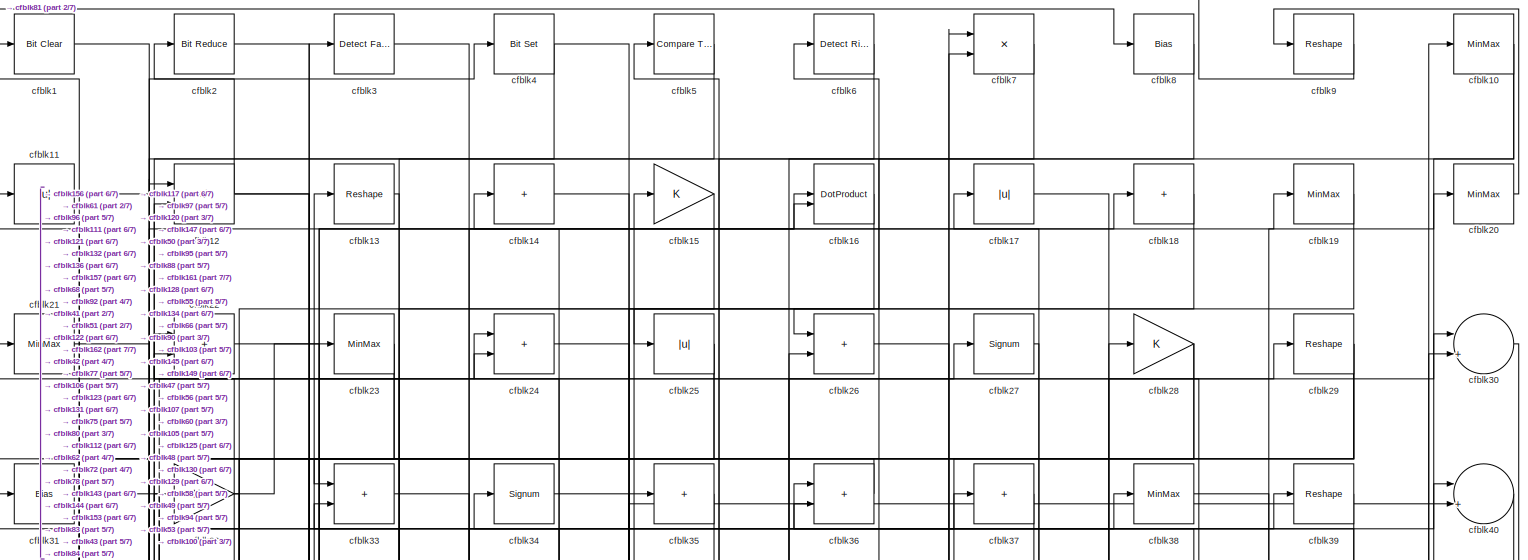
[diagram: root canvas - part 1/7, full width, top band]
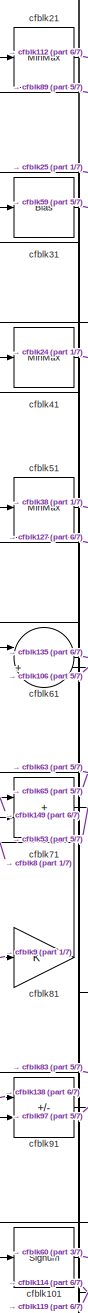
[diagram: root canvas - part 2/7, middle left region]
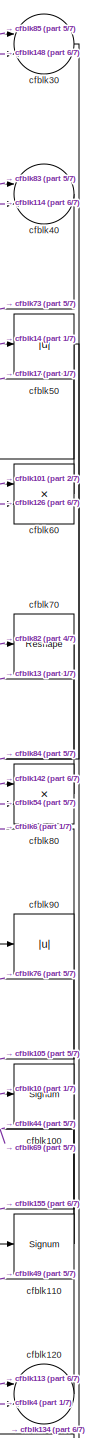
[diagram: root canvas - part 3/7, middle right region]
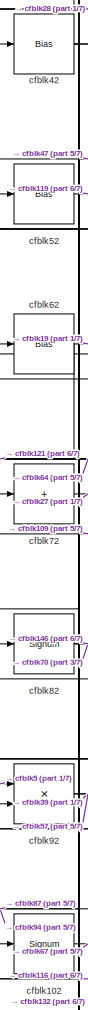
[diagram: root canvas - part 4/7, middle left region]
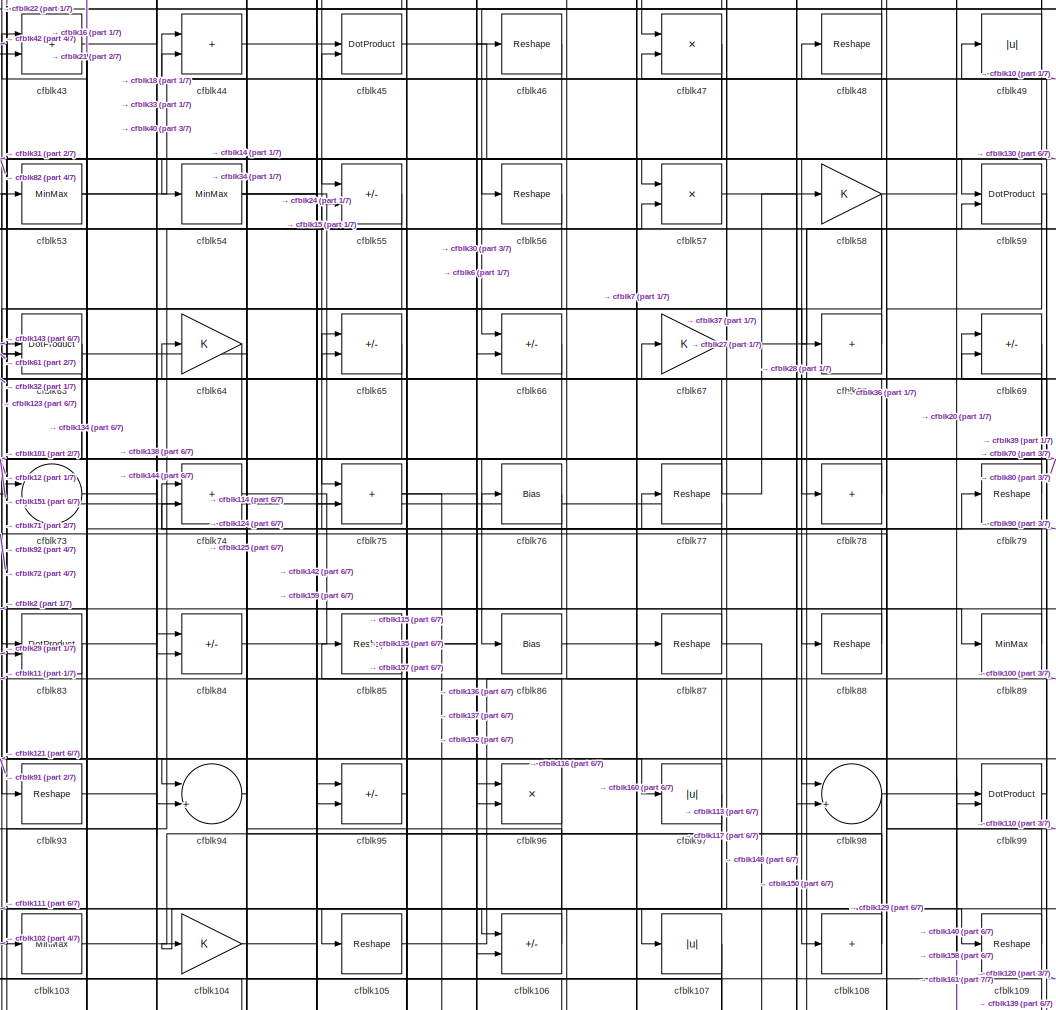
[diagram: root canvas - part 5/7, central region]
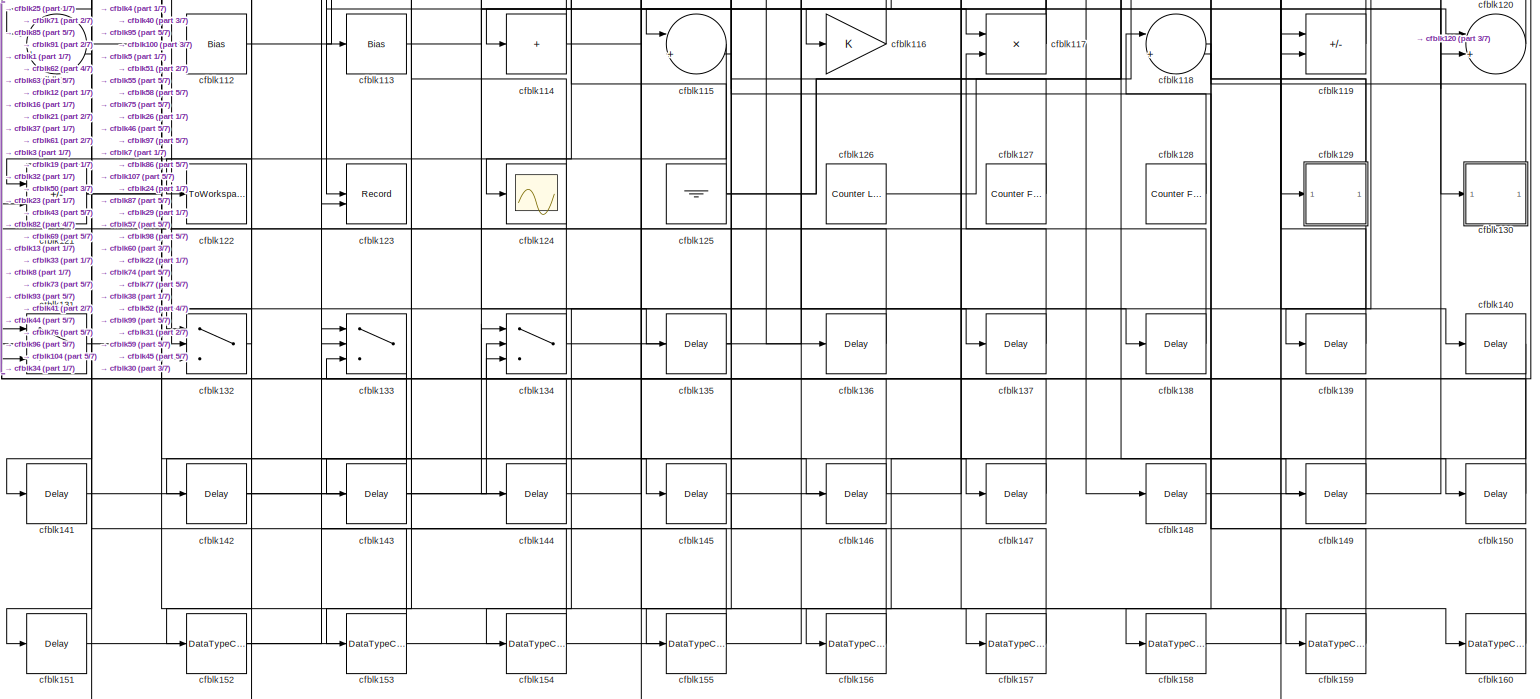
[diagram: root canvas - part 6/7, full width, bottom band]
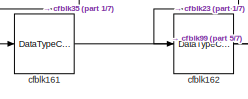
[diagram: root canvas - part 7/7, bottom left region]
MODEL slx_769ae406d6e1
KIND model
CONFIG AbsTol = auto
CONFIG EnableMultiTasking = off
CONFIG FixedStep = auto
CONFIG MaxStep = auto
CONFIG MinStep = auto
CONFIG RelTol = 1e-3
CONFIG SampleTimeConstraint = Unconstrained
CONFIG SolverName = VariableStepAuto
CONFIG StartTime = 0.0
CONFIG StopTime = 10.0
BLOCK [Reference] cfblk1  REF=simulink/Logic and Bit
Operations/Bit Clear
  LibrarySourceBlock = hdlsllib/Logic and Bit\nOperations/Bit Clear
  SourceBlock = simulink/Logic and Bit\nOperations/Bit Clear
  SourceType = Bit Clear
BLOCK [MinMax] cfblk10
BLOCK [Signum] cfblk100
BLOCK [Signum] cfblk101
BLOCK [Signum] cfblk102
BLOCK [MinMax] cfblk103
BLOCK [Gain] cfblk104
BLOCK [Reshape] cfblk105
BLOCK [Sum] cfblk106
  IconShape = rectangular
  Inputs = +-
BLOCK [Abs] cfblk107
  SaturateOnIntegerOverflow = off
BLOCK [Sum] cfblk108
  IconShape = rectangular
  Inputs = +
BLOCK [Reshape] cfblk109
BLOCK [Abs] cfblk11
  SaturateOnIntegerOverflow = off
BLOCK [Signum] cfblk110
BLOCK [Sum] cfblk111
  Inputs = |++
BLOCK [Bias] cfblk112
  Bias = 0.0
  SaturateOnIntegerOverflow = off
BLOCK [Bias] cfblk113
  Bias = 0.0
  SaturateOnIntegerOverflow = off
BLOCK [Sum] cfblk114
  IconShape = rectangular
  Inputs = +
BLOCK [Sum] cfblk115
  Inputs = |++
BLOCK [Gain] cfblk116
BLOCK [Product] cfblk117
  Inputs = */
  RndMeth = Zero
  SaturateOnIntegerOverflow = on
BLOCK [Sum] cfblk118
  Inputs = |++
BLOCK [Sum] cfblk119
  IconShape = rectangular
  Inputs = +-
BLOCK [Sum] cfblk12
  IconShape = rectangular
  Inputs = +-
BLOCK [Sum] cfblk120
  Inputs = |++
BLOCK [Sum] cfblk121
  IconShape = rectangular
  Inputs = +-
BLOCK [ToWorkspace] cfblk122
  MaxDataPoints = inf
  SampleTime = -1
  SaveFormat = Timeseries
  VariableName = simout
BLOCK [Record] cfblk123
  CompatibilityTag = XY
  FileSettingsInternal = {"entries":[{"content":{"excelSettings":{"content":{},"type":"Streamout.ExcelSettings"}},"type":"Streamout.FileSettingStorage","uuid":""}],"packageUris":["http:\/\/schema.mathworks.com\/mf0\/streamout_blocks\/R2020a"],"version":"1.0"}
  Layout = [1 1]
  SignalsInternal = {"entries":[{"content":{"signals":[{"content":{"blockPath":[],"dimensions":[1],"domain":"","lineColor":"#a2142f","plots":[1],"port":1,"signalID":3441,"signalName":"XY Graph:1"},"type":"RecordBlkView.Signal","uuid":""},{"content":{"blockPath":[],"dimensions":[1],"domain":"","lineColor":"#139fff","plots":[1],"port":2,"signalID":3444,"signalName":"XY Graph:2"},"type":"RecordBlkView.Signal","uuid":""}...<+146ch>
  VisualizationBindings = {"xyplotplugin":{"info":[{"series":[{"bindingParametersList":[{"parameter":"X-Axis","signalID":3441,"signalName":"XY Graph:1"},{"parameter":"Y-Axis","signalID":3444,"signalName":"XY Graph:2"}],"seriesID":36505}],"subplotID":1}]}}
  st = -1
BLOCK [Scope] cfblk124
  Floating = off
  NumInputPorts = 1
  ScopeSpecificationString = Simulink.scopes.TimeScopeBlockCfg('CurrentConfiguration', extmgr.ConfigurationSet(extmgr.Configuration('Core','General UI',true),extmgr.Configuration('Core','Source UI',true),extmgr.Configuration('Sources','WiredSimulink',true,'DataLoggingVariableName','ScopeData2','DataLoggingSaveFormat','Array','DataLoggingLimitDataPoints',true,'DataLoggingDecimation','1'),extmgr.Configuration('Visuals','Time Do...<+868ch>
BLOCK [Ground] cfblk125
BLOCK [Reference] cfblk126  REF=hdlsllib/Sources/Counter
Limited
  SourceBlock = hdlsllib/Sources/Counter\nLimited
  SourceType = Counter Limited
BLOCK [Reference] cfblk127  REF=hdlsllib/Sources/Counter
Free-Running
  SourceBlock = hdlsllib/Sources/Counter\nFree-Running
  SourceType = Counter Free-Running
BLOCK [Reference] cfblk128  REF=hdlsllib/Sources/Counter
Free-Running
  SourceBlock = hdlsllib/Sources/Counter\nFree-Running
  SourceType = Counter Free-Running
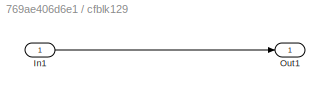
BLOCK [SubSystem] cfblk129
  LibrarySourceBlock = hdlsllib/Ports &\nSubsystems/Subsystem
BLOCK [Inport] cfblk129/In1
BLOCK [Outport] cfblk129/Out1
BLOCK [Reshape] cfblk13
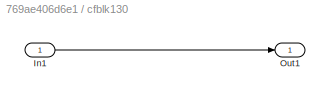
BLOCK [SubSystem] cfblk130
  LibrarySourceBlock = hdlsllib/Ports &\nSubsystems/Subsystem
BLOCK [Inport] cfblk130/In1
BLOCK [Outport] cfblk130/Out1
BLOCK [Switch] cfblk131
  InputSameDT = off
  SaturateOnIntegerOverflow = off
BLOCK [Switch] cfblk132
  InputSameDT = off
  SaturateOnIntegerOverflow = off
BLOCK [Switch] cfblk133
  InputSameDT = off
  SaturateOnIntegerOverflow = off
BLOCK [Switch] cfblk134
  InputSameDT = off
  SaturateOnIntegerOverflow = off
BLOCK [Delay] cfblk135
  InputPortMap = u0
  SampleTime = 1
BLOCK [Delay] cfblk136
  InputPortMap = u0
  SampleTime = 1
BLOCK [Delay] cfblk137
  InputPortMap = u0
  SampleTime = 1
BLOCK [Delay] cfblk138
  InputPortMap = u0
  SampleTime = 1
BLOCK [Delay] cfblk139
  InputPortMap = u0
  SampleTime = 1
BLOCK [Sum] cfblk14
  IconShape = rectangular
  Inputs = +
BLOCK [Delay] cfblk140
  InputPortMap = u0
  SampleTime = 1
BLOCK [Delay] cfblk141
  InputPortMap = u0
  SampleTime = 1
BLOCK [Delay] cfblk142
  InputPortMap = u0
  SampleTime = 1
BLOCK [Delay] cfblk143
  InputPortMap = u0
  SampleTime = 1
BLOCK [Delay] cfblk144
  InputPortMap = u0
  SampleTime = 1
BLOCK [Delay] cfblk145
  InputPortMap = u0
  SampleTime = 1
BLOCK [Delay] cfblk146
  InputPortMap = u0
  SampleTime = 1
BLOCK [Delay] cfblk147
  InputPortMap = u0
  SampleTime = 1
BLOCK [Delay] cfblk148
  InputPortMap = u0
  SampleTime = 1
BLOCK [Delay] cfblk149
  InputPortMap = u0
  SampleTime = 1
BLOCK [Gain] cfblk15
BLOCK [Delay] cfblk150
  InputPortMap = u0
  SampleTime = 1
BLOCK [Delay] cfblk151
  InputPortMap = u0
  SampleTime = 1
BLOCK [DataTypeConversion] cfblk152
  OutDataTypeStr = uint8
  RndMeth = Floor
  SaturateOnIntegerOverflow = off
BLOCK [DataTypeConversion] cfblk153
  OutDataTypeStr = uint8
  RndMeth = Floor
  SaturateOnIntegerOverflow = off
BLOCK [DataTypeConversion] cfblk154
  OutDataTypeStr = uint8
  RndMeth = Floor
  SaturateOnIntegerOverflow = off
BLOCK [DataTypeConversion] cfblk155
  OutDataTypeStr = uint8
  RndMeth = Floor
  SaturateOnIntegerOverflow = off
BLOCK [DataTypeConversion] cfblk156
  OutDataTypeStr = boolean
  RndMeth = Floor
  SaturateOnIntegerOverflow = off
BLOCK [DataTypeConversion] cfblk157
  OutDataTypeStr = uint8
  RndMeth = Floor
  SaturateOnIntegerOverflow = off
BLOCK [DataTypeConversion] cfblk158
  OutDataTypeStr = uint8
  RndMeth = Floor
  SaturateOnIntegerOverflow = off
BLOCK [DataTypeConversion] cfblk159
  OutDataTypeStr = uint8
  RndMeth = Floor
  SaturateOnIntegerOverflow = off
BLOCK [DotProduct] cfblk16
  OutDataTypeStr = Inherit: Inherit via internal rule
BLOCK [DataTypeConversion] cfblk160
  OutDataTypeStr = uint8
  RndMeth = Floor
  SaturateOnIntegerOverflow = off
BLOCK [DataTypeConversion] cfblk161
  OutDataTypeStr = uint8
  RndMeth = Floor
  SaturateOnIntegerOverflow = off
BLOCK [DataTypeConversion] cfblk162
  OutDataTypeStr = uint8
  RndMeth = Floor
  SaturateOnIntegerOverflow = off
BLOCK [Abs] cfblk17
  SaturateOnIntegerOverflow = off
BLOCK [Sum] cfblk18
  IconShape = rectangular
  Inputs = +
BLOCK [MinMax] cfblk19
BLOCK [Reference] cfblk2  REF=hdlsllib/Logic and Bit
Operations/Bit Reduce
  SourceBlock = hdlsllib/Logic and Bit\nOperations/Bit Reduce
  SourceType = Bit Reduce
BLOCK [MinMax] cfblk20
BLOCK [MinMax] cfblk21
BLOCK [Sum] cfblk22
  IconShape = rectangular
BLOCK [MinMax] cfblk23
BLOCK [Sum] cfblk24
  IconShape = rectangular
BLOCK [Abs] cfblk25
  SaturateOnIntegerOverflow = off
BLOCK [Sum] cfblk26
  IconShape = rectangular
BLOCK [Signum] cfblk27
BLOCK [Gain] cfblk28
BLOCK [Reshape] cfblk29
BLOCK [Reference] cfblk3  REF=hdlsllib/Logic and Bit
Operations/Detect Fall
Negative
  SourceBlock = hdlsllib/Logic and Bit\nOperations/Detect Fall\nNegative
  SourceType = Detect Fall Negative
BLOCK [Sum] cfblk30
  Inputs = |++
BLOCK [Bias] cfblk31
  Bias = 0.0
  SaturateOnIntegerOverflow = off
BLOCK [Gain] cfblk32
BLOCK [Sum] cfblk33
  IconShape = rectangular
BLOCK [Signum] cfblk34
BLOCK [Sum] cfblk35
  IconShape = rectangular
  Inputs = +
BLOCK [Sum] cfblk36
  IconShape = rectangular
BLOCK [Sum] cfblk37
  IconShape = rectangular
  Inputs = +
BLOCK [MinMax] cfblk38
BLOCK [Reshape] cfblk39
BLOCK [Reference] cfblk4  REF=simulink/Logic and Bit
Operations/Bit Set
  LibrarySourceBlock = hdlsllib/Logic and Bit\nOperations/Bit Set
  SourceBlock = simulink/Logic and Bit\nOperations/Bit Set
  SourceType = Bit Set
BLOCK [Sum] cfblk40
  Inputs = |++
BLOCK [MinMax] cfblk41
BLOCK [Bias] cfblk42
  Bias = 0.0
  SaturateOnIntegerOverflow = off
BLOCK [Sum] cfblk43
  IconShape = rectangular
BLOCK [Sum] cfblk44
  IconShape = rectangular
BLOCK [DotProduct] cfblk45
  OutDataTypeStr = Inherit: Inherit via internal rule
BLOCK [Reshape] cfblk46
BLOCK [Product] cfblk47
  Inputs = */
  RndMeth = Zero
  SaturateOnIntegerOverflow = on
BLOCK [Reshape] cfblk48
BLOCK [Abs] cfblk49
  SaturateOnIntegerOverflow = off
BLOCK [Reference] cfblk5  REF=hdlsllib/Logic and Bit
Operations/Compare
To Zero
  SourceBlock = hdlsllib/Logic and Bit\nOperations/Compare\nTo Zero
  SourceType = Compare To Zero
BLOCK [Abs] cfblk50
  SaturateOnIntegerOverflow = off
BLOCK [MinMax] cfblk51
BLOCK [Bias] cfblk52
  Bias = 0.0
  SaturateOnIntegerOverflow = off
BLOCK [MinMax] cfblk53
BLOCK [MinMax] cfblk54
BLOCK [Sum] cfblk55
  IconShape = rectangular
  Inputs = +-
BLOCK [Reshape] cfblk56
BLOCK [Product] cfblk57
  Inputs = */
  RndMeth = Zero
  SaturateOnIntegerOverflow = on
BLOCK [Gain] cfblk58
BLOCK [DotProduct] cfblk59
  OutDataTypeStr = Inherit: Inherit via internal rule
BLOCK [Reference] cfblk6  REF=hdlsllib/Logic and Bit
Operations/Detect Rise
Positive
  SourceBlock = hdlsllib/Logic and Bit\nOperations/Detect Rise\nPositive
  SourceType = Detect Rise Positive
BLOCK [Product] cfblk60
  Inputs = */
  RndMeth = Zero
  SaturateOnIntegerOverflow = on
BLOCK [Sum] cfblk61
  Inputs = |++
BLOCK [Bias] cfblk62
  Bias = 0.0
  SaturateOnIntegerOverflow = off
BLOCK [DotProduct] cfblk63
  OutDataTypeStr = Inherit: Inherit via internal rule
BLOCK [Gain] cfblk64
BLOCK [Sum] cfblk65
  IconShape = rectangular
  Inputs = +-
BLOCK [Sum] cfblk66
  IconShape = rectangular
  Inputs = +-
BLOCK [Gain] cfblk67
BLOCK [Sum] cfblk68
  IconShape = rectangular
  Inputs = +
BLOCK [Sum] cfblk69
  IconShape = rectangular
  Inputs = +-
BLOCK [Product] cfblk7
  Inputs = */
  RndMeth = Zero
  SaturateOnIntegerOverflow = on
BLOCK [Reshape] cfblk70
BLOCK [Sum] cfblk71
  IconShape = rectangular
BLOCK [Sum] cfblk72
  IconShape = rectangular
  Inputs = +
BLOCK [Sum] cfblk73
  Inputs = |++
BLOCK [Sum] cfblk74
  IconShape = rectangular
BLOCK [Sum] cfblk75
  IconShape = rectangular
BLOCK [Bias] cfblk76
  Bias = 0.0
  SaturateOnIntegerOverflow = off
BLOCK [Reshape] cfblk77
BLOCK [Sum] cfblk78
  IconShape = rectangular
  Inputs = +
BLOCK [Reshape] cfblk79
BLOCK [Bias] cfblk8
  Bias = 0.0
  SaturateOnIntegerOverflow = off
BLOCK [Product] cfblk80
  Inputs = */
  RndMeth = Zero
  SaturateOnIntegerOverflow = on
BLOCK [Gain] cfblk81
BLOCK [Signum] cfblk82
BLOCK [DotProduct] cfblk83
  OutDataTypeStr = Inherit: Inherit via internal rule
BLOCK [Sum] cfblk84
  IconShape = rectangular
  Inputs = +-
BLOCK [Reshape] cfblk85
BLOCK [Bias] cfblk86
  Bias = 0.0
  SaturateOnIntegerOverflow = off
BLOCK [Reshape] cfblk87
BLOCK [Reshape] cfblk88
BLOCK [MinMax] cfblk89
BLOCK [Reshape] cfblk9
BLOCK [Abs] cfblk90
  SaturateOnIntegerOverflow = off
BLOCK [Sum] cfblk91
  IconShape = rectangular
  Inputs = +-
BLOCK [Product] cfblk92
  Inputs = */
  RndMeth = Zero
  SaturateOnIntegerOverflow = on
BLOCK [Reshape] cfblk93
BLOCK [Sum] cfblk94
  Inputs = |++
BLOCK [Sum] cfblk95
  IconShape = rectangular
  Inputs = +-
BLOCK [Product] cfblk96
  Inputs = */
  RndMeth = Zero
  SaturateOnIntegerOverflow = on
BLOCK [Abs] cfblk97
  SaturateOnIntegerOverflow = off
BLOCK [Sum] cfblk98
  Inputs = |++
BLOCK [DotProduct] cfblk99
  OutDataTypeStr = Inherit: Inherit via internal rule
NET cfblk100:1 -> cfblk155:1, cfblk76:1
LINE cfblk101:1 -> cfblk60:1
LINE cfblk102:1 -> cfblk67:1
LINE cfblk103:1 -> cfblk7:2
LINE cfblk104:1 -> cfblk159:1
LINE cfblk105:1 -> cfblk28:1
LINE cfblk106:1 -> cfblk61:2
NET cfblk107:1 -> cfblk104:1, cfblk113:1
NET cfblk108:1 -> cfblk65:1, cfblk74:2
LINE cfblk109:1 -> cfblk72:1
NET cfblk10:1 -> cfblk100:1, cfblk26:1
NET cfblk110:1 -> cfblk44:1, cfblk69:2
LINE cfblk111:1 -> cfblk37:1
LINE cfblk112:1 -> cfblk16:1
LINE cfblk113:1 -> cfblk120:1
NET cfblk114:1 -> cfblk40:2, cfblk41:1
LINE cfblk115:1 -> cfblk141:1
LINE cfblk116:1 -> cfblk52:1
NET cfblk117:1 -> cfblk24:2, cfblk85:1
LINE cfblk118:1 -> cfblk158:1
LINE cfblk119:1 -> cfblk31:1
LINE cfblk11:1 -> cfblk4:1
LINE cfblk120:1 -> cfblk49:1
NET cfblk121:1 -> cfblk145:1, cfblk16:2
NET cfblk125:1 -> cfblk29:1, cfblk44:2, cfblk98:2
LINE cfblk126:1 -> cfblk60:2
LINE cfblk127:1 -> cfblk51:1
LINE cfblk128:1 -> cfblk5:1
LINE cfblk129/In1:1 -> cfblk129/Out1:1
NET cfblk129:1 -> cfblk154:1, cfblk74:1, cfblk77:1
NET cfblk12:1 -> cfblk106:1, cfblk2:1, cfblk75:2
LINE cfblk130/In1:1 -> cfblk130/Out1:1
LINE cfblk130:1 -> cfblk22:1
LINE cfblk131:1 -> cfblk3:1
LINE cfblk132:1 -> cfblk62:1
LINE cfblk133:1 -> cfblk152:1
NET cfblk134:1 -> cfblk26:2, cfblk63:2
LINE cfblk135:1 -> cfblk55:2
LINE cfblk136:1 -> cfblk12:1
LINE cfblk137:1 -> cfblk117:2
LINE cfblk138:1 -> cfblk91:1
LINE cfblk139:1 -> cfblk119:1
LINE cfblk13:1 -> cfblk143:1
LINE cfblk140:1 -> cfblk156:1
LINE cfblk141:1 -> cfblk134:3
LINE cfblk142:1 -> cfblk95:1
LINE cfblk143:1 -> cfblk63:1
LINE cfblk144:1 -> cfblk33:2
LINE cfblk145:1 -> cfblk7:1
LINE cfblk146:1 -> cfblk134:1
LINE cfblk147:1 -> cfblk131:1
LINE cfblk148:1 -> cfblk30:2
LINE cfblk149:1 -> cfblk71:1
LINE cfblk14:1 -> cfblk50:1
LINE cfblk150:1 -> cfblk45:1
LINE cfblk151:1 -> cfblk43:2
LINE cfblk152:1 -> cfblk46:1
LINE cfblk153:1 -> cfblk133:1
LINE cfblk154:1 -> cfblk133:2
LINE cfblk155:1 -> cfblk133:3
LINE cfblk156:1 -> cfblk1:1
LINE cfblk157:1 -> cfblk45:2
LINE cfblk158:1 -> cfblk99:1
LINE cfblk159:1 -> cfblk118:1
LINE cfblk15:1 -> cfblk95:2
LINE cfblk160:1 -> cfblk118:2
LINE cfblk161:1 -> cfblk99:2
LINE cfblk162:1 -> cfblk35:1
LINE cfblk16:1 -> cfblk83:1
LINE cfblk17:1 -> cfblk90:1
LINE cfblk18:1 -> cfblk55:1
LINE cfblk19:1 -> cfblk122:1
LINE cfblk1:1 -> cfblk157:1
LINE cfblk20:1 -> cfblk9:1
LINE cfblk21:1 -> cfblk112:1
LINE cfblk22:1 -> cfblk78:1
NET cfblk23:1 -> cfblk123:2, cfblk162:1
LINE cfblk24:1 -> cfblk68:1
NET cfblk25:1 -> cfblk131:3, cfblk61:1
LINE cfblk26:1 -> cfblk149:1
LINE cfblk27:1 -> cfblk107:1
NET cfblk28:1 -> cfblk42:1, cfblk47:1
NET cfblk29:1 -> cfblk111:2, cfblk132:2, cfblk83:2
LINE cfblk2:1 -> cfblk88:1
LINE cfblk30:1 -> cfblk134:2
LINE cfblk31:1 -> cfblk59:1
NET cfblk32:1 -> cfblk131:2, cfblk132:1, cfblk22:2, cfblk23:1
LINE cfblk33:1 -> cfblk84:1
LINE cfblk34:1 -> cfblk147:1
LINE cfblk35:1 -> cfblk161:1
LINE cfblk36:1 -> cfblk33:1
LINE cfblk37:1 -> cfblk56:1
LINE cfblk38:1 -> cfblk129:1
LINE cfblk39:1 -> cfblk94:1
LINE cfblk3:1 -> cfblk117:1
LINE cfblk40:1 -> cfblk73:1
LINE cfblk41:1 -> cfblk24:1
NET cfblk42:1 -> cfblk102:1, cfblk87:1, cfblk94:2
LINE cfblk43:1 -> cfblk18:1
LINE cfblk44:1 -> cfblk109:1
LINE cfblk45:1 -> cfblk130:1
LINE cfblk46:1 -> cfblk54:1
NET cfblk47:1 -> cfblk66:1, cfblk82:1
NET cfblk48:1 -> cfblk108:1, cfblk36:1
NET cfblk49:1 -> cfblk106:2, cfblk36:2
NET cfblk4:1 -> cfblk120:2, cfblk132:3
NET cfblk50:1 -> cfblk142:1, cfblk80:1
LINE cfblk51:1 -> cfblk38:1
LINE cfblk52:1 -> cfblk119:2
NET cfblk53:1 -> cfblk10:1, cfblk57:1
NET cfblk54:1 -> cfblk110:1, cfblk48:1, cfblk80:2
LINE cfblk55:1 -> cfblk103:1
LINE cfblk56:1 -> cfblk93:1
LINE cfblk57:1 -> cfblk150:1
NET cfblk58:1 -> cfblk115:2, cfblk20:1
NET cfblk59:1 -> cfblk139:1, cfblk98:1
LINE cfblk5:1 -> cfblk92:1
LINE cfblk60:1 -> cfblk17:1
LINE cfblk61:1 -> cfblk135:1
NET cfblk62:1 -> cfblk121:1, cfblk19:1
NET cfblk63:1 -> cfblk151:1, cfblk71:2
LINE cfblk64:1 -> cfblk92:2
LINE cfblk65:1 -> cfblk101:1
LINE cfblk66:1 -> cfblk86:1
NET cfblk67:1 -> cfblk47:2, cfblk59:2
LINE cfblk68:1 -> cfblk12:2
NET cfblk69:1 -> cfblk123:1, cfblk96:2
LINE cfblk6:1 -> cfblk66:2
LINE cfblk70:1 -> cfblk84:2
LINE cfblk71:1 -> cfblk53:1
LINE cfblk72:1 -> cfblk27:1
LINE cfblk73:1 -> cfblk144:1
LINE cfblk74:1 -> cfblk96:1
NET cfblk75:1 -> cfblk136:1, cfblk137:1
LINE cfblk76:1 -> cfblk114:1
NET cfblk77:1 -> cfblk32:1, cfblk58:1, cfblk75:1
LINE cfblk78:1 -> cfblk43:1
LINE cfblk79:1 -> cfblk64:1
LINE cfblk7:1 -> cfblk25:1
LINE cfblk80:1 -> cfblk13:1
LINE cfblk81:1 -> cfblk8:1
NET cfblk82:1 -> cfblk146:1, cfblk70:1
NET cfblk83:1 -> cfblk40:1, cfblk91:2
LINE cfblk84:1 -> cfblk89:1
NET cfblk85:1 -> cfblk121:2, cfblk30:1, cfblk79:1
LINE cfblk86:1 -> cfblk160:1
NET cfblk87:1 -> cfblk148:1, cfblk73:2
LINE cfblk88:1 -> cfblk15:1
LINE cfblk89:1 -> cfblk21:1
LINE cfblk8:1 -> cfblk153:1
NET cfblk90:1 -> cfblk105:1, cfblk6:1
LINE cfblk91:1 -> cfblk97:1
NET cfblk92:1 -> cfblk39:1, cfblk57:2
LINE cfblk93:1 -> cfblk138:1
LINE cfblk94:1 -> cfblk34:1
LINE cfblk95:1 -> cfblk65:2
NET cfblk96:1 -> cfblk11:1, cfblk124:1
NET cfblk97:1 -> cfblk111:1, cfblk116:1, cfblk14:1
NET cfblk98:1 -> cfblk115:1, cfblk140:1
LINE cfblk99:1 -> cfblk69:1
LINE cfblk9:1 -> cfblk81:1
note: NET lines group one-source signal fan-out (src -> all destinations, sorted); 1:1 wires keep LINE
